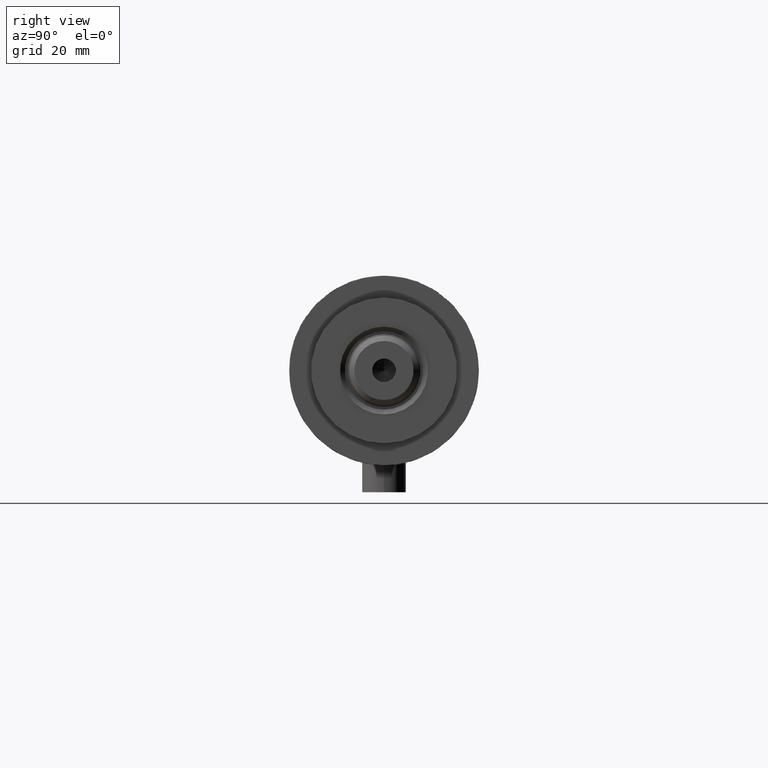
[diagram: clean part render]
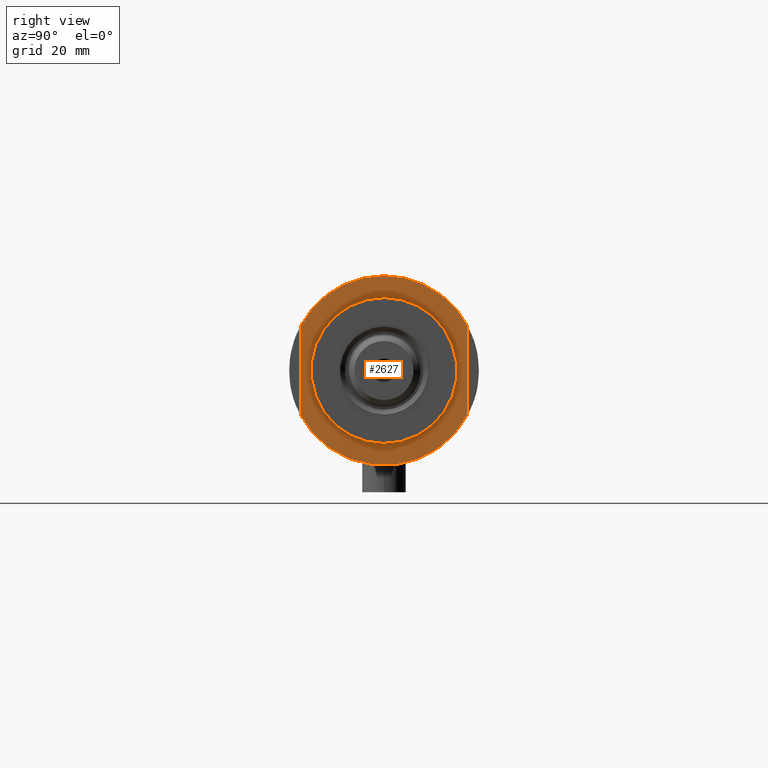
[diagram: same view with one face highlighted and labeled with its STEP entity id]
A machine part, right view. The second image highlights one B-rep face of the part: STEP entity #2627.
In plain terms, the highlighted planar face has unit normal (1, 0, -0).
Its self-contained STEP definition (entity closure, byte-faithful):
#14 = EDGE_CURVE ( 'NONE', #3062, #2993, #2231, .T. ) ;
#95 = FACE_OUTER_BOUND ( 'NONE', #872, .T. ) ;
#155 = FACE_BOUND ( 'NONE', #867, .T. ) ;
#242 = DIRECTION ( 'NONE',  ( 0.000000000000000000, 0.000000000000000000, 1.000000000000000000 ) ) ;
#268 = AXIS2_PLACEMENT_3D ( 'NONE', #3596, #242, #3202 ) ;
#314 = VERTEX_POINT ( 'NONE', #2036 ) ;
#426 = ORIENTED_EDGE ( 'NONE', *, *, #1538, .T. ) ;
#476 = DIRECTION ( 'NONE',  ( 1.000000000000000000, 0.000000000000000000, 0.000000000000000000 ) ) ;
#580 = ORIENTED_EDGE ( 'NONE', *, *, #14, .T. ) ;
#865 = CARTESIAN_POINT ( 'NONE',  ( 0.000000000000000000, 0.000000000000000000, 15.50000000000000000 ) ) ;
#867 = EDGE_LOOP ( 'NONE', ( #426, #1123 ) ) ;
#872 = EDGE_LOOP ( 'NONE', ( #4375, #580, #2232, #1641, #903 ) ) ;
#903 = ORIENTED_EDGE ( 'NONE', *, *, #3544, .T. ) ;
#910 = CARTESIAN_POINT ( 'NONE',  ( 0.000000000000000000, 0.000000000000000000, 15.50000000000000000 ) ) ;
#977 = EDGE_CURVE ( 'NONE', #2996, #2993, #1389, .T. ) ;
#1004 = VECTOR ( 'NONE', #4155, 1000.000000000000000 ) ;
#1032 = VERTEX_POINT ( 'NONE', #1737 ) ;
#1109 = CARTESIAN_POINT ( 'NONE',  ( 0.000000000000000000, 0.000000000000000000, 15.50000000000000000 ) ) ;
#1110 = LINE ( 'NONE', #4855, #1004 ) ;
#1123 = ORIENTED_EDGE ( 'NONE', *, *, #1644, .T. ) ;
#1148 = AXIS2_PLACEMENT_3D ( 'NONE', #1109, #3387, #476 ) ;
#1243 = AXIS2_PLACEMENT_3D ( 'NONE', #3224, #1813, #3980 ) ;
#1297 = CARTESIAN_POINT ( 'NONE',  ( -20.00000000000000000, 2.449293598294706513E-15, 15.50000000000000000 ) ) ;
#1389 = LINE ( 'NONE', #4394, #4031 ) ;
#1538 = EDGE_CURVE ( 'NONE', #314, #1660, #4820, .T. ) ;
#1571 = CARTESIAN_POINT ( 'NONE',  ( 12.12435565298214790, 23.00000000000000355, 15.50000000000000000 ) ) ;
#1621 = CIRCLE ( 'NONE', #3799, 20.00000000000000000 ) ;
#1641 = ORIENTED_EDGE ( 'NONE', *, *, #3604, .T. ) ;
#1643 = CIRCLE ( 'NONE', #268, 26.00000000000000355 ) ;
#1644 = EDGE_CURVE ( 'NONE', #1660, #314, #1621, .T. ) ;
#1660 = VERTEX_POINT ( 'NONE', #1297 ) ;
#1737 = CARTESIAN_POINT ( 'NONE',  ( -12.12435565298215323, -22.99999999999999645, 15.50000000000000000 ) ) ;
#1813 = DIRECTION ( 'NONE',  ( 0.000000000000000000, 0.000000000000000000, 1.000000000000000000 ) ) ;
#1820 = CARTESIAN_POINT ( 'NONE',  ( -26.00000000000000355, 0.000000000000000000, 15.50000000000000000 ) ) ;
#1959 = VERTEX_POINT ( 'NONE', #1820 ) ;
#2025 = AXIS2_PLACEMENT_3D ( 'NONE', #865, #4281, #2364 ) ;
#2036 = CARTESIAN_POINT ( 'NONE',  ( 20.00000000000000000, 0.000000000000000000, 15.50000000000000000 ) ) ;
#2063 = DIRECTION ( 'NONE',  ( -0.000000000000000000, -0.000000000000000000, -1.000000000000000000 ) ) ;
#2090 = CARTESIAN_POINT ( 'NONE',  ( 0.000000000000000000, 0.000000000000000000, 15.50000000000000000 ) ) ;
#2231 = CIRCLE ( 'NONE', #4099, 26.00000000000000355 ) ;
#2232 = ORIENTED_EDGE ( 'NONE', *, *, #977, .F. ) ;
#2364 = DIRECTION ( 'NONE',  ( 1.000000000000000000, 0.000000000000000000, -0.000000000000000000 ) ) ;
#2389 = EDGE_CURVE ( 'NONE', #3062, #1032, #1110, .T. ) ;
#2410 = DIRECTION ( 'NONE',  ( 1.000000000000000000, 0.000000000000000000, 0.000000000000000000 ) ) ;
#2585 = CARTESIAN_POINT ( 'NONE',  ( -12.12435565298214613, 23.00000000000000355, 15.50000000000000000 ) ) ;
#2627 = ADVANCED_FACE ( 'NONE', ( #155, #95 ), #3814, .T. ) ;
#2663 = CIRCLE ( 'NONE', #1243, 26.00000000000000355 ) ;
#2993 = VERTEX_POINT ( 'NONE', #1571 ) ;
#2996 = VERTEX_POINT ( 'NONE', #2585 ) ;
#3062 = VERTEX_POINT ( 'NONE', #3451 ) ;
#3202 = DIRECTION ( 'NONE',  ( 1.000000000000000000, 0.000000000000000000, 0.000000000000000000 ) ) ;
#3213 = DIRECTION ( 'NONE',  ( 1.000000000000000000, 0.000000000000000000, 0.000000000000000000 ) ) ;
#3224 = CARTESIAN_POINT ( 'NONE',  ( 0.000000000000000000, 0.000000000000000000, 15.50000000000000000 ) ) ;
#3387 = DIRECTION ( 'NONE',  ( -0.000000000000000000, -0.000000000000000000, -1.000000000000000000 ) ) ;
#3451 = CARTESIAN_POINT ( 'NONE',  ( 12.12435565298215323, -22.99999999999999645, 15.50000000000000000 ) ) ;
#3544 = EDGE_CURVE ( 'NONE', #1959, #1032, #2663, .T. ) ;
#3596 = CARTESIAN_POINT ( 'NONE',  ( 0.000000000000000000, 0.000000000000000000, 15.50000000000000000 ) ) ;
#3604 = EDGE_CURVE ( 'NONE', #2996, #1959, #1643, .T. ) ;
#3799 = AXIS2_PLACEMENT_3D ( 'NONE', #910, #2063, #2410 ) ;
#3814 = PLANE ( 'NONE',  #2025 ) ;
#3980 = DIRECTION ( 'NONE',  ( 1.000000000000000000, 0.000000000000000000, 0.000000000000000000 ) ) ;
#4031 = VECTOR ( 'NONE', #4374, 1000.000000000000000 ) ;
#4099 = AXIS2_PLACEMENT_3D ( 'NONE', #2090, #4729, #3213 ) ;
#4155 = DIRECTION ( 'NONE',  ( -1.000000000000000000, -0.000000000000000000, -0.000000000000000000 ) ) ;
#4281 = DIRECTION ( 'NONE',  ( 0.000000000000000000, 0.000000000000000000, 1.000000000000000000 ) ) ;
#4374 = DIRECTION ( 'NONE',  ( 1.000000000000000000, 0.000000000000000000, 0.000000000000000000 ) ) ;
#4375 = ORIENTED_EDGE ( 'NONE', *, *, #2389, .F. ) ;
#4394 = CARTESIAN_POINT ( 'NONE',  ( -12.12435565298215145, 23.00000000000000355, 15.50000000000000000 ) ) ;
#4729 = DIRECTION ( 'NONE',  ( 0.000000000000000000, 0.000000000000000000, 1.000000000000000000 ) ) ;
#4820 = CIRCLE ( 'NONE', #1148, 20.00000000000000000 ) ;
#4855 = CARTESIAN_POINT ( 'NONE',  ( -12.12435565298215145, -22.99999999999999645, 15.50000000000000000 ) ) ;